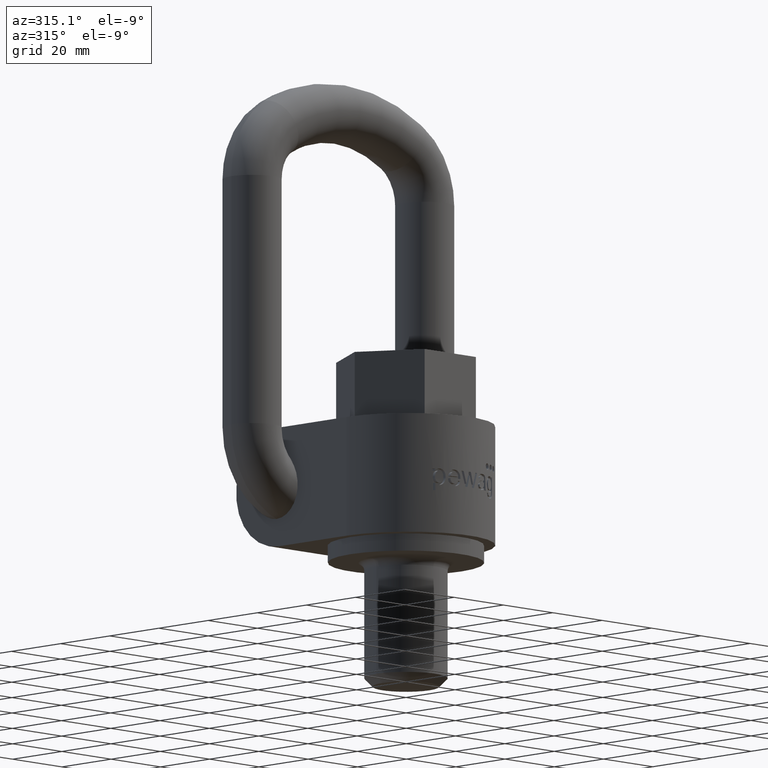
[diagram: clean part render]
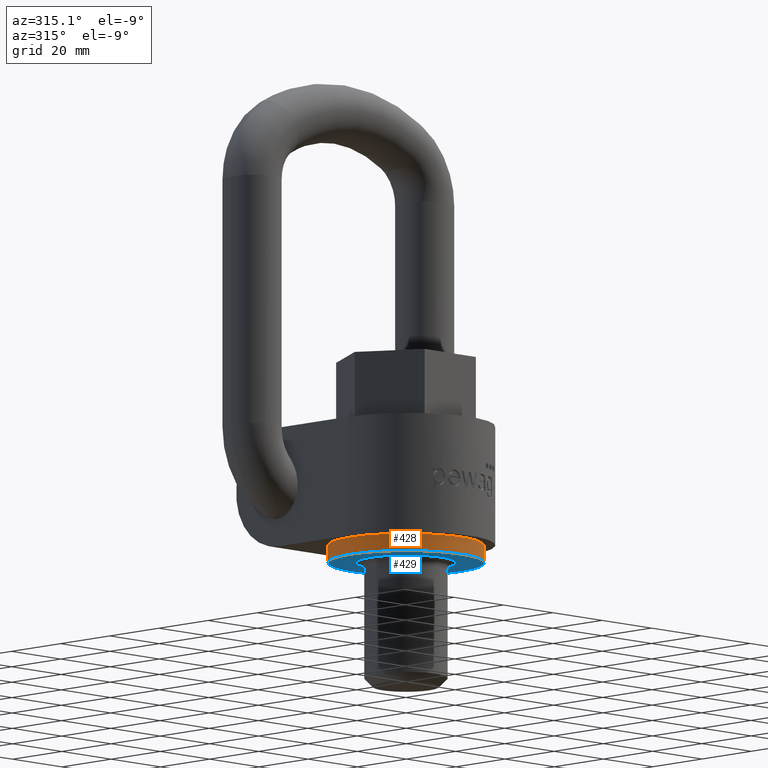
[diagram: same view with the hole feature highlighted: cylindrical wall and planar end face, labeled with their STEP entity ids]
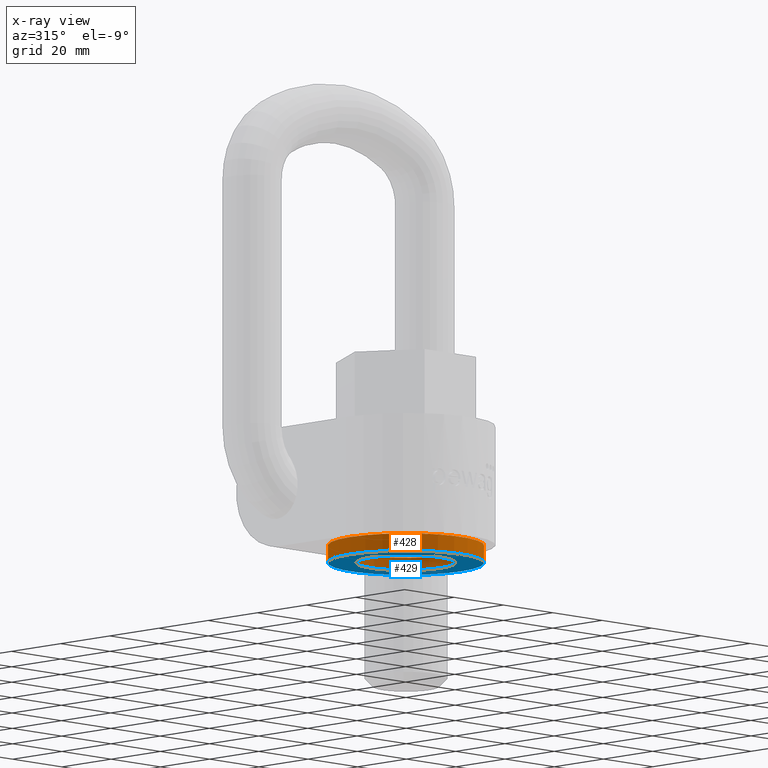
[diagram: x-ray of the same camera — body ghosted, the hole faces saturated]
A machine part, auxiliary view. The highlighted faces form one hole feature of diameter 45 mm: the cylindrical wall (entity #428, orange) and its adjacent planar end face (entity #429, blue) — they share a circular edge in the B-rep.
The next image is the same camera in x-ray (body ghosted, the hole faces saturated) — the bore reads through the body.
Wall:
#428=ADVANCED_FACE('',(#585,#586),#538,.T.);
#538=CYLINDRICAL_SURFACE('',#2475,22.5);
#585=FACE_BOUND('',#660,.T.);
#586=FACE_BOUND('',#661,.T.);
#660=EDGE_LOOP('',(#1290));
#661=EDGE_LOOP('',(#1291));
#1101=CIRCLE('',#2448,22.5);
#1106=CIRCLE('',#2474,22.5);
#1290=ORIENTED_EDGE('',*,*,#2058,.F.);
#1291=ORIENTED_EDGE('',*,*,#2014,.T.);
#1803=VERTEX_POINT('',#3803);
#1832=VERTEX_POINT('',#3897);
#2014=EDGE_CURVE('',#1803,#1803,#1101,.T.);
#2058=EDGE_CURVE('',#1832,#1832,#1106,.T.);
#2448=AXIS2_PLACEMENT_3D('',#3802,#2623,#2624);
#2474=AXIS2_PLACEMENT_3D('',#3896,#2714,#2715);
#2475=AXIS2_PLACEMENT_3D('',#3898,#2716,#2717);
#2623=DIRECTION('',(0.,0.,-1.));
#2624=DIRECTION('',(1.,1.22464679914735E-16,0.));
#2714=DIRECTION('',(0.,0.,-1.));
#2715=DIRECTION('',(1.,1.22464679914735E-16,0.));
#2716=DIRECTION('',(0.,0.,1.));
#2717=DIRECTION('',(1.,0.,0.));
#3802=CARTESIAN_POINT('',(0.,0.,6.69539461904587E-14));
#3803=CARTESIAN_POINT('',(22.5,2.75545529808154E-15,6.69539461904587E-14));
#3896=CARTESIAN_POINT('',(0.,0.,-4.99999999999993));
#3897=CARTESIAN_POINT('',(22.5,2.75545529808154E-15,-4.99999999999993));
#3898=CARTESIAN_POINT('',(0.,0.,-4.99999999999993));
End face:
#366=PLANE('',#2477);
#429=ADVANCED_FACE('',(#587,#588),#366,.T.);
#587=FACE_BOUND('',#662,.T.);
#588=FACE_BOUND('',#663,.T.);
#662=EDGE_LOOP('',(#1292));
#663=EDGE_LOOP('',(#1293));
#1106=CIRCLE('',#2474,22.5);
#1107=CIRCLE('',#2476,14.4);
#1292=ORIENTED_EDGE('',*,*,#2059,.T.);
#1293=ORIENTED_EDGE('',*,*,#2058,.T.);
#1832=VERTEX_POINT('',#3897);
#1833=VERTEX_POINT('',#3900);
#2058=EDGE_CURVE('',#1832,#1832,#1106,.T.);
#2059=EDGE_CURVE('',#1833,#1833,#1107,.T.);
#2474=AXIS2_PLACEMENT_3D('',#3896,#2714,#2715);
#2476=AXIS2_PLACEMENT_3D('',#3899,#2718,#2719);
#2477=AXIS2_PLACEMENT_3D('',#3901,#2720,#2721);
#2714=DIRECTION('',(0.,0.,-1.));
#2715=DIRECTION('',(1.,1.22464679914735E-16,0.));
#2718=DIRECTION('',(0.,0.,1.));
#2719=DIRECTION('',(-1.,0.,0.));
#2720=DIRECTION('',(0.,0.,-1.));
#2721=DIRECTION('',(-1.,0.,0.));
#3896=CARTESIAN_POINT('',(0.,0.,-4.99999999999993));
#3897=CARTESIAN_POINT('',(22.5,2.75545529808154E-15,-4.99999999999993));
#3899=CARTESIAN_POINT('',(0.,0.,-4.99999999999993));
#3900=CARTESIAN_POINT('',(-14.4,0.,-4.99999999999993));
#3901=CARTESIAN_POINT('',(0.,0.,-4.99999999999993));